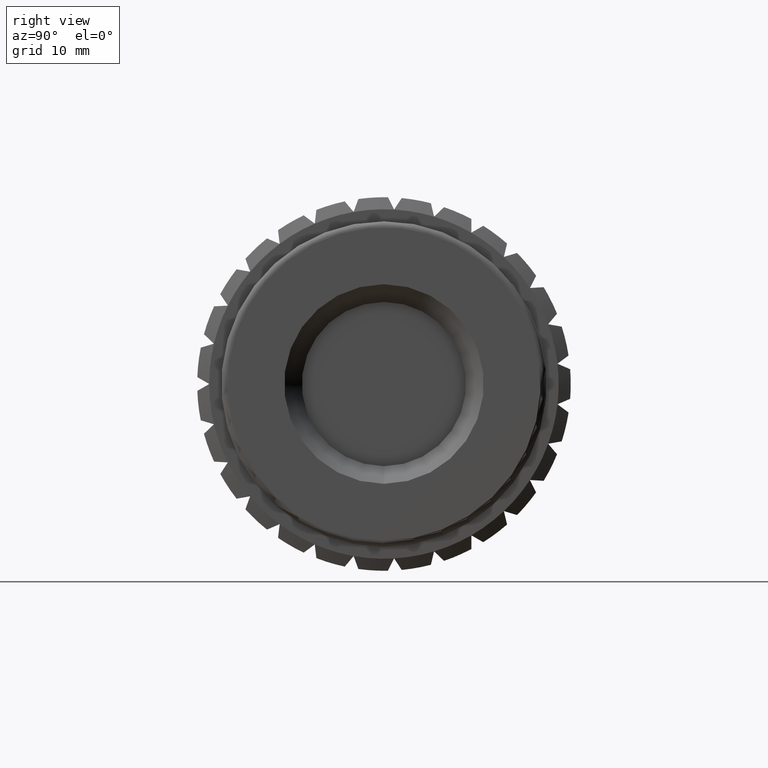
[diagram: clean part render]
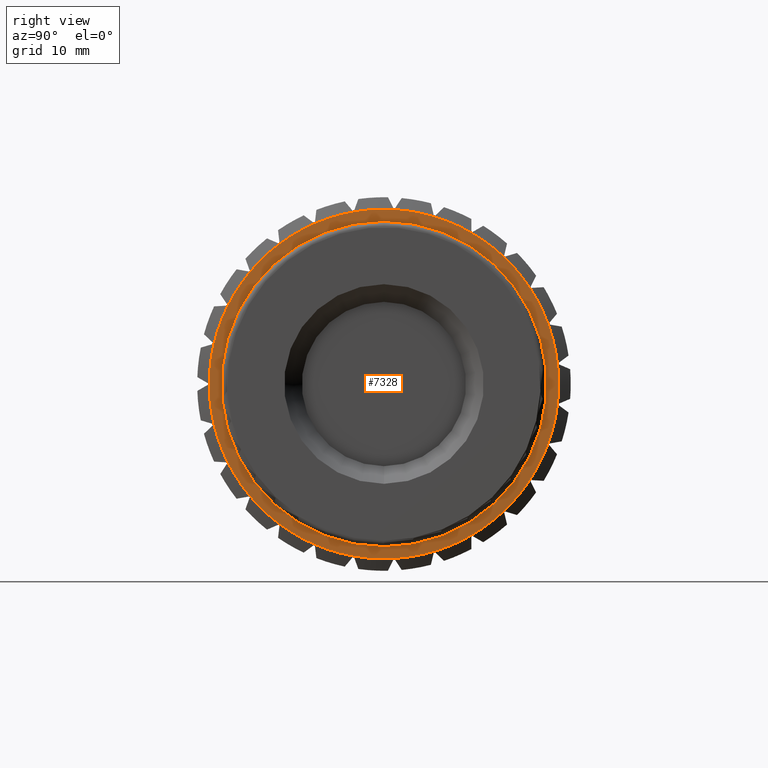
[diagram: same view with one face highlighted and labeled with its STEP entity id]
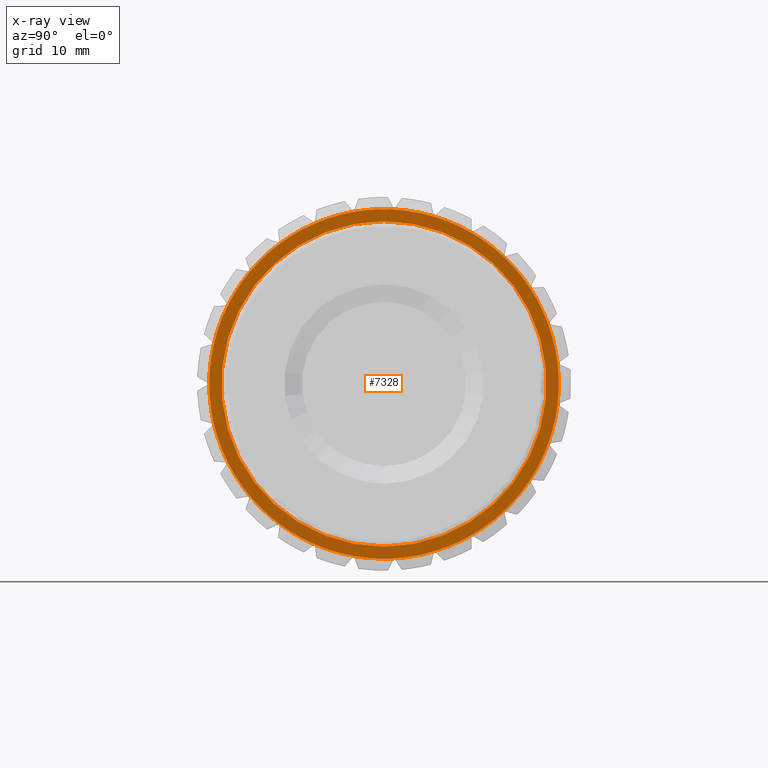
[diagram: x-ray of the same camera — body ghosted, the highlighted face saturated]
A machine part, right view. The second image highlights one B-rep face of the part: STEP entity #7328.
The next image is the same camera in x-ray: the body ghosted, the highlighted face saturated — about 0% of this face is hidden behind the body in this view.
In plain terms, the highlighted planar face has unit normal (-1, 0, 0).
Its self-contained STEP definition (entity closure, byte-faithful):
#1445=FACE_BOUND('',#2184,.T.);
#1620=FACE_OUTER_BOUND('',#2183,.T.);
#2183=EDGE_LOOP('',(#5312,#5313,#5314,#5315,#5316,#5317,#5318,#5319,#5320,
#5321,#5322,#5323,#5324,#5325,#5326,#5327,#5328,#5329,#5330,#5331,#5332,
#5333,#5334,#5335,#5336,#5337,#5338));
#2184=EDGE_LOOP('',(#5339));
#2685=CIRCLE('',#7966,14.5);
#2686=CIRCLE('',#7968,14.5);
#2688=CIRCLE('',#7971,14.5);
#2689=CIRCLE('',#7973,14.5);
#2690=CIRCLE('',#7975,14.5);
#2691=CIRCLE('',#7976,14.5);
#2692=CIRCLE('',#7977,14.5);
#2693=CIRCLE('',#7978,14.5);
#2694=CIRCLE('',#7979,14.5);
#2695=CIRCLE('',#7980,14.5);
#2696=CIRCLE('',#7981,14.5);
#2697=CIRCLE('',#7982,14.5);
#2698=CIRCLE('',#7983,14.5);
#2699=CIRCLE('',#7984,14.5);
#2700=CIRCLE('',#7985,14.5);
#2701=CIRCLE('',#7986,14.5);
#2702=CIRCLE('',#7987,14.5);
#2703=CIRCLE('',#7988,14.5);
#2704=CIRCLE('',#7989,14.5);
#2705=CIRCLE('',#7990,14.5);
#2706=CIRCLE('',#7991,14.5);
#2707=CIRCLE('',#7992,14.5);
#2708=CIRCLE('',#7993,14.5);
#2709=CIRCLE('',#7994,14.5);
#2710=CIRCLE('',#7995,14.5);
#2711=CIRCLE('',#7996,14.5);
#2712=CIRCLE('',#7997,14.5);
#2713=CIRCLE('',#7998,13.5);
#2993=VERTEX_POINT('',#10923);
#3019=VERTEX_POINT('',#11044);
#3021=VERTEX_POINT('',#11058);
#3054=VERTEX_POINT('',#11215);
#3063=VERTEX_POINT('',#11265);
#3074=VERTEX_POINT('',#11319);
#3077=VERTEX_POINT('',#11338);
#3088=VERTEX_POINT('',#11388);
#3107=VERTEX_POINT('',#11469);
#3118=VERTEX_POINT('',#11516);
#3122=VERTEX_POINT('',#11531);
#3133=VERTEX_POINT('',#11586);
#3146=VERTEX_POINT('',#11645);
#3162=VERTEX_POINT('',#11712);
#3173=VERTEX_POINT('',#11759);
#3185=VERTEX_POINT('',#11822);
#3198=VERTEX_POINT('',#11881);
#3214=VERTEX_POINT('',#11948);
#3224=VERTEX_POINT('',#11999);
#3237=VERTEX_POINT('',#12058);
#3253=VERTEX_POINT('',#12125);
#3263=VERTEX_POINT('',#12176);
#3276=VERTEX_POINT('',#12235);
#3298=VERTEX_POINT('',#12338);
#3311=VERTEX_POINT('',#12397);
#3322=VERTEX_POINT('',#12444);
#3339=VERTEX_POINT('',#12526);
#3347=VERTEX_POINT('',#12611);
#4063=EDGE_CURVE('',#3063,#3074,#2685,.T.);
#4064=EDGE_CURVE('',#2993,#3063,#2686,.T.);
#4066=EDGE_CURVE('',#3074,#3077,#2688,.T.);
#4067=EDGE_CURVE('',#3118,#2993,#2689,.T.);
#4068=EDGE_CURVE('',#3019,#3021,#2690,.T.);
#4069=EDGE_CURVE('',#3021,#3322,#2691,.T.);
#4070=EDGE_CURVE('',#3322,#3253,#2692,.T.);
#4071=EDGE_CURVE('',#3253,#3214,#2693,.T.);
#4072=EDGE_CURVE('',#3214,#3162,#2694,.T.);
#4073=EDGE_CURVE('',#3162,#3122,#2695,.T.);
#4074=EDGE_CURVE('',#3122,#3118,#2696,.T.);
#4075=EDGE_CURVE('',#3077,#3088,#2697,.T.);
#4076=EDGE_CURVE('',#3088,#3107,#2698,.T.);
#4077=EDGE_CURVE('',#3107,#3133,#2699,.T.);
#4078=EDGE_CURVE('',#3133,#3173,#2700,.T.);
#4079=EDGE_CURVE('',#3173,#3146,#2701,.T.);
#4080=EDGE_CURVE('',#3146,#3185,#2702,.T.);
#4081=EDGE_CURVE('',#3185,#3198,#2703,.T.);
#4082=EDGE_CURVE('',#3198,#3224,#2704,.T.);
#4083=EDGE_CURVE('',#3224,#3237,#2705,.T.);
#4084=EDGE_CURVE('',#3237,#3263,#2706,.T.);
#4085=EDGE_CURVE('',#3263,#3276,#2707,.T.);
#4086=EDGE_CURVE('',#3276,#3298,#2708,.T.);
#4087=EDGE_CURVE('',#3298,#3311,#2709,.T.);
#4088=EDGE_CURVE('',#3311,#3339,#2710,.T.);
#4089=EDGE_CURVE('',#3339,#3054,#2711,.T.);
#4090=EDGE_CURVE('',#3054,#3019,#2712,.T.);
#4091=EDGE_CURVE('',#3347,#3347,#2713,.T.);
#5312=ORIENTED_EDGE('',*,*,#4068,.T.);
#5313=ORIENTED_EDGE('',*,*,#4069,.T.);
#5314=ORIENTED_EDGE('',*,*,#4070,.T.);
#5315=ORIENTED_EDGE('',*,*,#4071,.T.);
#5316=ORIENTED_EDGE('',*,*,#4072,.T.);
#5317=ORIENTED_EDGE('',*,*,#4073,.T.);
#5318=ORIENTED_EDGE('',*,*,#4074,.T.);
#5319=ORIENTED_EDGE('',*,*,#4067,.T.);
#5320=ORIENTED_EDGE('',*,*,#4064,.T.);
#5321=ORIENTED_EDGE('',*,*,#4063,.T.);
#5322=ORIENTED_EDGE('',*,*,#4066,.T.);
#5323=ORIENTED_EDGE('',*,*,#4075,.T.);
#5324=ORIENTED_EDGE('',*,*,#4076,.T.);
#5325=ORIENTED_EDGE('',*,*,#4077,.T.);
#5326=ORIENTED_EDGE('',*,*,#4078,.T.);
#5327=ORIENTED_EDGE('',*,*,#4079,.T.);
#5328=ORIENTED_EDGE('',*,*,#4080,.T.);
#5329=ORIENTED_EDGE('',*,*,#4081,.T.);
#5330=ORIENTED_EDGE('',*,*,#4082,.T.);
#5331=ORIENTED_EDGE('',*,*,#4083,.T.);
#5332=ORIENTED_EDGE('',*,*,#4084,.T.);
#5333=ORIENTED_EDGE('',*,*,#4085,.T.);
#5334=ORIENTED_EDGE('',*,*,#4086,.T.);
#5335=ORIENTED_EDGE('',*,*,#4087,.T.);
#5336=ORIENTED_EDGE('',*,*,#4088,.T.);
#5337=ORIENTED_EDGE('',*,*,#4089,.T.);
#5338=ORIENTED_EDGE('',*,*,#4090,.T.);
#5339=ORIENTED_EDGE('',*,*,#4091,.F.);
#7057=PLANE('',#7974);
#7328=ADVANCED_FACE('',(#1620,#1445),#7057,.F.);
#7966=AXIS2_PLACEMENT_3D('',#12579,#9318,#9319);
#7968=AXIS2_PLACEMENT_3D('',#12581,#9322,#9323);
#7971=AXIS2_PLACEMENT_3D('',#12584,#9328,#9329);
#7973=AXIS2_PLACEMENT_3D('',#12586,#9332,#9333);
#7974=AXIS2_PLACEMENT_3D('',#12587,#9334,#9335);
#7975=AXIS2_PLACEMENT_3D('',#12588,#9336,#9337);
#7976=AXIS2_PLACEMENT_3D('',#12589,#9338,#9339);
#7977=AXIS2_PLACEMENT_3D('',#12590,#9340,#9341);
#7978=AXIS2_PLACEMENT_3D('',#12591,#9342,#9343);
#7979=AXIS2_PLACEMENT_3D('',#12592,#9344,#9345);
#7980=AXIS2_PLACEMENT_3D('',#12593,#9346,#9347);
#7981=AXIS2_PLACEMENT_3D('',#12594,#9348,#9349);
#7982=AXIS2_PLACEMENT_3D('',#12595,#9350,#9351);
#7983=AXIS2_PLACEMENT_3D('',#12596,#9352,#9353);
#7984=AXIS2_PLACEMENT_3D('',#12597,#9354,#9355);
#7985=AXIS2_PLACEMENT_3D('',#12598,#9356,#9357);
#7986=AXIS2_PLACEMENT_3D('',#12599,#9358,#9359);
#7987=AXIS2_PLACEMENT_3D('',#12600,#9360,#9361);
#7988=AXIS2_PLACEMENT_3D('',#12601,#9362,#9363);
#7989=AXIS2_PLACEMENT_3D('',#12602,#9364,#9365);
#7990=AXIS2_PLACEMENT_3D('',#12603,#9366,#9367);
#7991=AXIS2_PLACEMENT_3D('',#12604,#9368,#9369);
#7992=AXIS2_PLACEMENT_3D('',#12605,#9370,#9371);
#7993=AXIS2_PLACEMENT_3D('',#12606,#9372,#9373);
#7994=AXIS2_PLACEMENT_3D('',#12607,#9374,#9375);
#7995=AXIS2_PLACEMENT_3D('',#12608,#9376,#9377);
#7996=AXIS2_PLACEMENT_3D('',#12609,#9378,#9379);
#7997=AXIS2_PLACEMENT_3D('',#12610,#9380,#9381);
#7998=AXIS2_PLACEMENT_3D('',#12612,#9382,#9383);
#9318=DIRECTION('center_axis',(1.,0.,0.));
#9319=DIRECTION('ref_axis',(0.,0.,-1.));
#9322=DIRECTION('center_axis',(1.,0.,0.));
#9323=DIRECTION('ref_axis',(0.,0.,-1.));
#9328=DIRECTION('center_axis',(1.,0.,0.));
#9329=DIRECTION('ref_axis',(0.,0.,-1.));
#9332=DIRECTION('center_axis',(1.,0.,0.));
#9333=DIRECTION('ref_axis',(0.,0.,-1.));
#9334=DIRECTION('center_axis',(-1.,0.,0.));
#9335=DIRECTION('ref_axis',(0.,0.,1.));
#9336=DIRECTION('center_axis',(1.,0.,0.));
#9337=DIRECTION('ref_axis',(0.,0.,-1.));
#9338=DIRECTION('center_axis',(1.,0.,0.));
#9339=DIRECTION('ref_axis',(0.,0.,-1.));
#9340=DIRECTION('center_axis',(1.,0.,0.));
#9341=DIRECTION('ref_axis',(0.,0.,-1.));
#9342=DIRECTION('center_axis',(1.,0.,0.));
#9343=DIRECTION('ref_axis',(0.,0.,-1.));
#9344=DIRECTION('center_axis',(1.,0.,0.));
#9345=DIRECTION('ref_axis',(0.,0.,-1.));
#9346=DIRECTION('center_axis',(1.,0.,0.));
#9347=DIRECTION('ref_axis',(0.,0.,-1.));
#9348=DIRECTION('center_axis',(1.,0.,0.));
#9349=DIRECTION('ref_axis',(0.,0.,-1.));
#9350=DIRECTION('center_axis',(1.,0.,0.));
#9351=DIRECTION('ref_axis',(0.,0.,-1.));
#9352=DIRECTION('center_axis',(1.,0.,0.));
#9353=DIRECTION('ref_axis',(0.,0.,-1.));
#9354=DIRECTION('center_axis',(1.,0.,0.));
#9355=DIRECTION('ref_axis',(0.,0.,-1.));
#9356=DIRECTION('center_axis',(1.,0.,0.));
#9357=DIRECTION('ref_axis',(0.,0.,-1.));
#9358=DIRECTION('center_axis',(1.,0.,0.));
#9359=DIRECTION('ref_axis',(0.,0.,-1.));
#9360=DIRECTION('center_axis',(1.,0.,0.));
#9361=DIRECTION('ref_axis',(0.,0.,-1.));
#9362=DIRECTION('center_axis',(1.,0.,0.));
#9363=DIRECTION('ref_axis',(0.,0.,-1.));
#9364=DIRECTION('center_axis',(1.,0.,0.));
#9365=DIRECTION('ref_axis',(0.,0.,-1.));
#9366=DIRECTION('center_axis',(1.,0.,0.));
#9367=DIRECTION('ref_axis',(0.,0.,-1.));
#9368=DIRECTION('center_axis',(1.,0.,0.));
#9369=DIRECTION('ref_axis',(0.,0.,-1.));
#9370=DIRECTION('center_axis',(1.,0.,0.));
#9371=DIRECTION('ref_axis',(0.,0.,-1.));
#9372=DIRECTION('center_axis',(1.,0.,0.));
#9373=DIRECTION('ref_axis',(0.,0.,-1.));
#9374=DIRECTION('center_axis',(1.,0.,0.));
#9375=DIRECTION('ref_axis',(0.,0.,-1.));
#9376=DIRECTION('center_axis',(1.,0.,0.));
#9377=DIRECTION('ref_axis',(0.,0.,-1.));
#9378=DIRECTION('center_axis',(1.,0.,0.));
#9379=DIRECTION('ref_axis',(0.,0.,-1.));
#9380=DIRECTION('center_axis',(1.,0.,0.));
#9381=DIRECTION('ref_axis',(0.,0.,-1.));
#9382=DIRECTION('center_axis',(1.,0.,0.));
#9383=DIRECTION('ref_axis',(0.,0.,-1.));
#10923=CARTESIAN_POINT('',(21.12,0.843100019201899,14.4754682949334));
#11044=CARTESIAN_POINT('',(21.12,13.6255430013957,-4.95929207822219));
#11058=CARTESIAN_POINT('',(21.12,14.4019561872582,-1.68334725481584));
#11215=CARTESIAN_POINT('',(21.12,12.1145732654876,-7.96788018202668));
#11265=CARTESIAN_POINT('',(21.12,-2.51789857617049,14.279712418677));
#11319=CARTESIAN_POINT('',(21.12,-5.74315660756777,13.314133549764));
#11338=CARTESIAN_POINT('',(21.12,-8.6587995796904,11.6307862949481));
#11388=CARTESIAN_POINT('',(21.12,-11.1076444252252,9.32042034045482));
#11469=CARTESIAN_POINT('',(21.12,-12.9576732846895,6.5075881129067));
#11516=CARTESIAN_POINT('',(21.12,4.15864687431081,13.8908479285746));
#11531=CARTESIAN_POINT('',(21.12,7.25,12.5573683548744));
#11586=CARTESIAN_POINT('',(21.12,-14.1091506234074,3.34393012576538));
#11645=CARTESIAN_POINT('',(21.12,-14.1091506234074,-3.34393012576538));
#11712=CARTESIAN_POINT('',(21.12,9.95050374909663,10.5469178028092));
#11759=CARTESIAN_POINT('',(21.12,-14.5,4.33680868994202E-16));
#11822=CARTESIAN_POINT('',(21.12,-12.9576732846895,-6.5075881129067));
#11881=CARTESIAN_POINT('',(21.12,-11.1076444252252,-9.32042034045481));
#11948=CARTESIAN_POINT('',(21.12,12.1145732654876,7.96788018202669));
#11999=CARTESIAN_POINT('',(21.12,-8.65879957969039,-11.6307862949481));
#12058=CARTESIAN_POINT('',(21.12,-5.74315660756777,-13.314133549764));
#12125=CARTESIAN_POINT('',(21.12,13.6255430013957,4.9592920782222));
#12176=CARTESIAN_POINT('',(21.12,-2.51789857617049,-14.279712418677));
#12235=CARTESIAN_POINT('',(21.12,0.843100019201898,-14.4754682949334));
#12338=CARTESIAN_POINT('',(21.12,4.1586468743108,-13.8908479285746));
#12397=CARTESIAN_POINT('',(21.12,7.24999999999999,-12.5573683548744));
#12444=CARTESIAN_POINT('',(21.12,14.4019561872582,1.68334725481584));
#12526=CARTESIAN_POINT('',(21.12,9.95050374909663,-10.5469178028092));
#12579=CARTESIAN_POINT('Origin',(21.12,0.,0.));
#12581=CARTESIAN_POINT('Origin',(21.12,0.,0.));
#12584=CARTESIAN_POINT('Origin',(21.12,0.,0.));
#12586=CARTESIAN_POINT('Origin',(21.12,0.,0.));
#12587=CARTESIAN_POINT('Origin',(21.12,14.5,0.));
#12588=CARTESIAN_POINT('Origin',(21.12,0.,0.));
#12589=CARTESIAN_POINT('Origin',(21.12,0.,0.));
#12590=CARTESIAN_POINT('Origin',(21.12,0.,0.));
#12591=CARTESIAN_POINT('Origin',(21.12,0.,0.));
#12592=CARTESIAN_POINT('Origin',(21.12,0.,0.));
#12593=CARTESIAN_POINT('Origin',(21.12,0.,0.));
#12594=CARTESIAN_POINT('Origin',(21.12,0.,0.));
#12595=CARTESIAN_POINT('Origin',(21.12,0.,0.));
#12596=CARTESIAN_POINT('Origin',(21.12,0.,0.));
#12597=CARTESIAN_POINT('Origin',(21.12,0.,0.));
#12598=CARTESIAN_POINT('Origin',(21.12,0.,0.));
#12599=CARTESIAN_POINT('Origin',(21.12,0.,0.));
#12600=CARTESIAN_POINT('Origin',(21.12,0.,0.));
#12601=CARTESIAN_POINT('Origin',(21.12,0.,0.));
#12602=CARTESIAN_POINT('Origin',(21.12,0.,0.));
#12603=CARTESIAN_POINT('Origin',(21.12,0.,0.));
#12604=CARTESIAN_POINT('Origin',(21.12,0.,0.));
#12605=CARTESIAN_POINT('Origin',(21.12,0.,0.));
#12606=CARTESIAN_POINT('Origin',(21.12,0.,0.));
#12607=CARTESIAN_POINT('Origin',(21.12,0.,0.));
#12608=CARTESIAN_POINT('Origin',(21.12,0.,0.));
#12609=CARTESIAN_POINT('Origin',(21.12,0.,0.));
#12610=CARTESIAN_POINT('Origin',(21.12,0.,0.));
#12611=CARTESIAN_POINT('',(21.12,0.,-13.5));
#12612=CARTESIAN_POINT('Origin',(21.12,0.,0.));